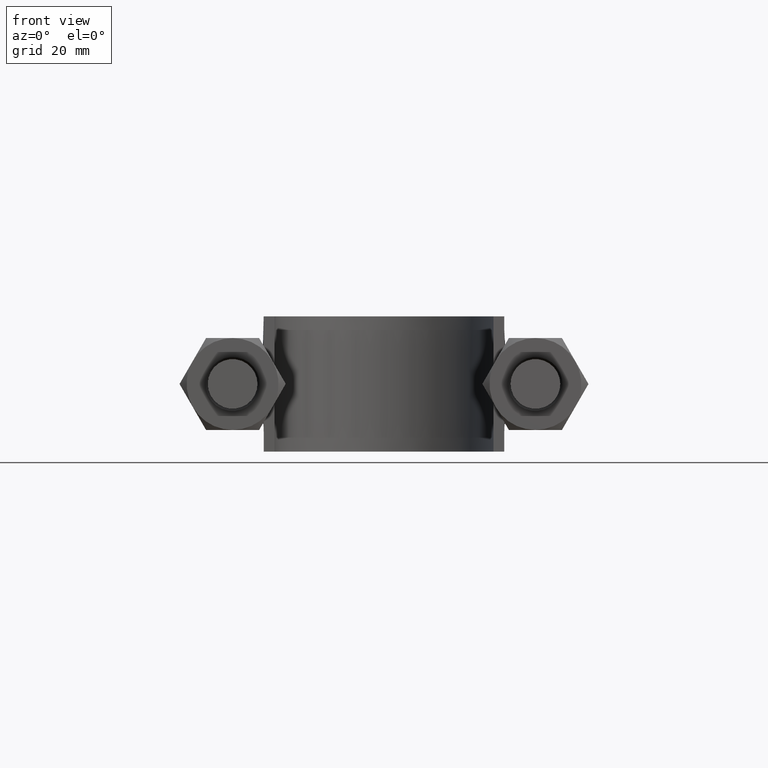
[diagram: clean part render]
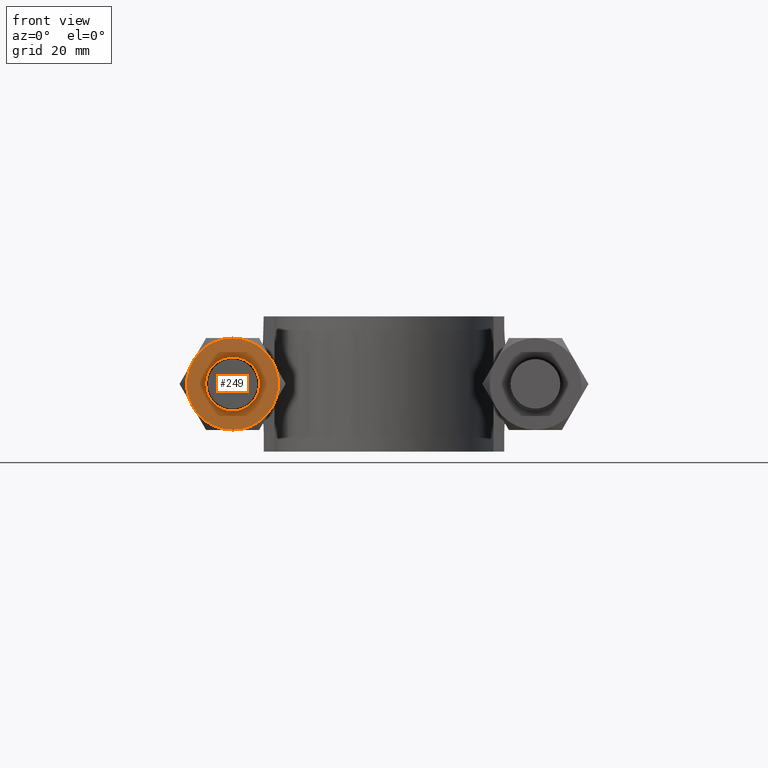
[diagram: same view with one face highlighted and labeled with its STEP entity id]
A machine part, front view. The second image highlights one B-rep face of the part: STEP entity #249.
In plain terms, the highlighted planar face has unit normal (0, 1, 0).
Its self-contained STEP definition (entity closure, byte-faithful):
#249 = ADVANCED_FACE( '', ( #362, #363 ), #364, .F. );
#362 = FACE_OUTER_BOUND( '', #1205, .T. );
#363 = FACE_BOUND( '', #1206, .T. );
#364 = PLANE( '', #1207 );
#1205 = EDGE_LOOP( '', ( #1500, #1501, #1502, #1503, #1504, #1505 ) );
#1206 = EDGE_LOOP( '', ( #1506 ) );
#1207 = AXIS2_PLACEMENT_3D( '', #1507, #1508, #1509 );
#1500 = ORIENTED_EDGE( '', *, *, #1889, .F. );
#1501 = ORIENTED_EDGE( '', *, *, #1890, .F. );
#1502 = ORIENTED_EDGE( '', *, *, #1891, .F. );
#1503 = ORIENTED_EDGE( '', *, *, #1892, .F. );
#1504 = ORIENTED_EDGE( '', *, *, #1887, .F. );
#1505 = ORIENTED_EDGE( '', *, *, #1893, .F. );
#1506 = ORIENTED_EDGE( '', *, *, #1894, .T. );
#1507 = CARTESIAN_POINT( '', ( -28.0000000000000, 20.0000000000000, 4.46940661563713E-015 ) );
#1508 = DIRECTION( '', ( 1.22460635382238E-016, 1.00000000000000, 1.83690953073357E-016 ) );
#1509 = DIRECTION( '', ( -0.866025403784399, 1.42085446679058E-017, 0.500000000000068 ) );
#1887 = EDGE_CURVE( '', #2066, #2068, #2069, .T. );
#1889 = EDGE_CURVE( '', #2071, #2072, #2073, .T. );
#1890 = EDGE_CURVE( '', #2074, #2071, #2075, .T. );
#1891 = EDGE_CURVE( '', #2076, #2074, #2077, .T. );
#1892 = EDGE_CURVE( '', #2068, #2076, #2078, .T. );
#1893 = EDGE_CURVE( '', #2072, #2066, #2079, .T. );
#1894 = EDGE_CURVE( '', #2080, #2080, #2081, .T. );
#2066 = VERTEX_POINT( '', #2532 );
#2068 = VERTEX_POINT( '', #2539 );
#2069 = CIRCLE( '', #2540, 8.49999999999576 );
#2071 = VERTEX_POINT( '', #2549 );
#2072 = VERTEX_POINT( '', #2550 );
#2073 = CIRCLE( '', #2551, 8.49999999999576 );
#2074 = VERTEX_POINT( '', #2552 );
#2075 = CIRCLE( '', #2553, 8.49999999999576 );
#2076 = VERTEX_POINT( '', #2554 );
#2077 = CIRCLE( '', #2555, 8.49999999999576 );
#2078 = CIRCLE( '', #2556, 8.49999999999576 );
#2079 = CIRCLE( '', #2557, 8.49999999999576 );
#2080 = VERTEX_POINT( '', #2558 );
#2081 = CIRCLE( '', #2559, 4.99999999999751 );
#2532 = CARTESIAN_POINT( '', ( -20.6387840678363, 20.0000000000000, -4.24999999999845 ) );
#2539 = CARTESIAN_POINT( '', ( -28.0000000000025, 20.0000000000000, -8.49999999999894 ) );
#2540 = AXIS2_PLACEMENT_3D( '', #2942, #2943, #2944 );
#2549 = CARTESIAN_POINT( '', ( -27.9999999999975, 20.0000000000000, 8.49999999999895 ) );
#2550 = CARTESIAN_POINT( '', ( -20.6387840678338, 20.0000000000000, 4.25000000000049 ) );
#2551 = AXIS2_PLACEMENT_3D( '', #2945, #2946, #2947 );
#2552 = CARTESIAN_POINT( '', ( -35.3612159321637, 20.0000000000000, 4.24999999999846 ) );
#2553 = AXIS2_PLACEMENT_3D( '', #2948, #2949, #2950 );
#2554 = CARTESIAN_POINT( '', ( -35.3612159321662, 20.0000000000000, -4.25000000000048 ) );
#2555 = AXIS2_PLACEMENT_3D( '', #2951, #2952, #2953 );
#2556 = AXIS2_PLACEMENT_3D( '', #2954, #2955, #2956 );
#2557 = AXIS2_PLACEMENT_3D( '', #2957, #2958, #2959 );
#2558 = CARTESIAN_POINT( '', ( -32.3301270189198, 20.0000000000000, 2.49999999999910 ) );
#2559 = AXIS2_PLACEMENT_3D( '', #2960, #2961, #2962 );
#2942 = CARTESIAN_POINT( '', ( -28.0000000000000, 20.0000000000000, 4.46940661563713E-015 ) );
#2943 = DIRECTION( '', ( 1.22460635382238E-016, 1.00000000000000, 1.83690953073357E-016 ) );
#2944 = DIRECTION( '', ( -0.866025403784399, 1.42085446679058E-017, 0.500000000000068 ) );
#2945 = CARTESIAN_POINT( '', ( -28.0000000000000, 20.0000000000000, 4.46940661563713E-015 ) );
#2946 = DIRECTION( '', ( 1.22460635382238E-016, 1.00000000000000, 1.83690953073357E-016 ) );
#2947 = DIRECTION( '', ( -0.866025403784399, 1.42085446679058E-017, 0.500000000000068 ) );
#2948 = CARTESIAN_POINT( '', ( -28.0000000000000, 20.0000000000000, 4.46940661563713E-015 ) );
#2949 = DIRECTION( '', ( 1.22460635382238E-016, 1.00000000000000, 1.83690953073357E-016 ) );
#2950 = DIRECTION( '', ( -0.866025403784399, 1.42085446679058E-017, 0.500000000000068 ) );
#2951 = CARTESIAN_POINT( '', ( -28.0000000000000, 20.0000000000000, 4.46940661563713E-015 ) );
#2952 = DIRECTION( '', ( 1.22460635382238E-016, 1.00000000000000, 1.83690953073357E-016 ) );
#2953 = DIRECTION( '', ( -0.866025403784399, 1.42085446679058E-017, 0.500000000000068 ) );
#2954 = CARTESIAN_POINT( '', ( -28.0000000000000, 20.0000000000000, 4.46940661563713E-015 ) );
#2955 = DIRECTION( '', ( 1.22460635382238E-016, 1.00000000000000, 1.83690953073357E-016 ) );
#2956 = DIRECTION( '', ( -0.866025403784399, 1.42085446679058E-017, 0.500000000000068 ) );
#2957 = CARTESIAN_POINT( '', ( -28.0000000000000, 20.0000000000000, 4.46940661563713E-015 ) );
#2958 = DIRECTION( '', ( 1.22460635382238E-016, 1.00000000000000, 1.83690953073357E-016 ) );
#2959 = DIRECTION( '', ( -0.866025403784399, 1.42085446679058E-017, 0.500000000000068 ) );
#2960 = CARTESIAN_POINT( '', ( -28.0000000000000, 20.0000000000000, 4.46940661563713E-015 ) );
#2961 = DIRECTION( '', ( 1.22460635382238E-016, 1.00000000000000, 1.83690953073357E-016 ) );
#2962 = DIRECTION( '', ( -0.866025403784399, 1.42085446679058E-017, 0.500000000000068 ) );